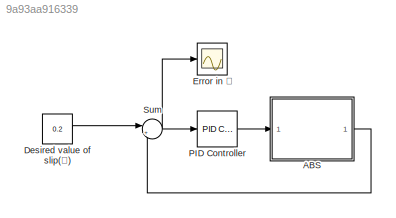
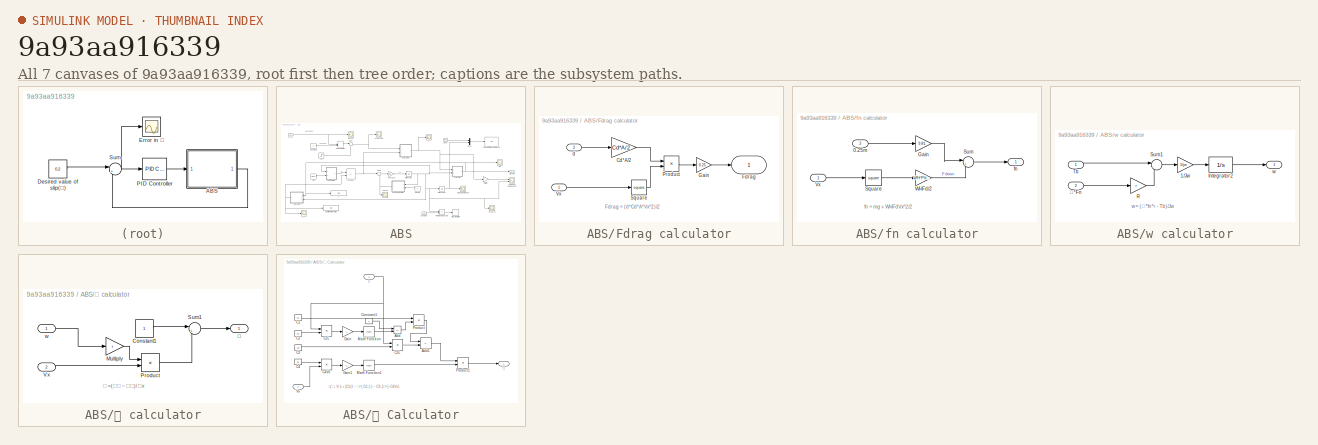
[diagram: thumbnail index - all 7 canvases of the model, root first then tree order]
MODEL slx_9a93aa916339
KIND model
CONFIG AbsTol = auto
CONFIG EnableMultiTasking = off
CONFIG FixedStep = auto
CONFIG MaxStep = auto
CONFIG MinStep = auto
CONFIG RelTol = 1e-3
CONFIG SampleTimeConstraint = Unconstrained
CONFIG SolverName = VariableStepAuto
CONFIG StartTime = 0.0
CONFIG StopTime = 50
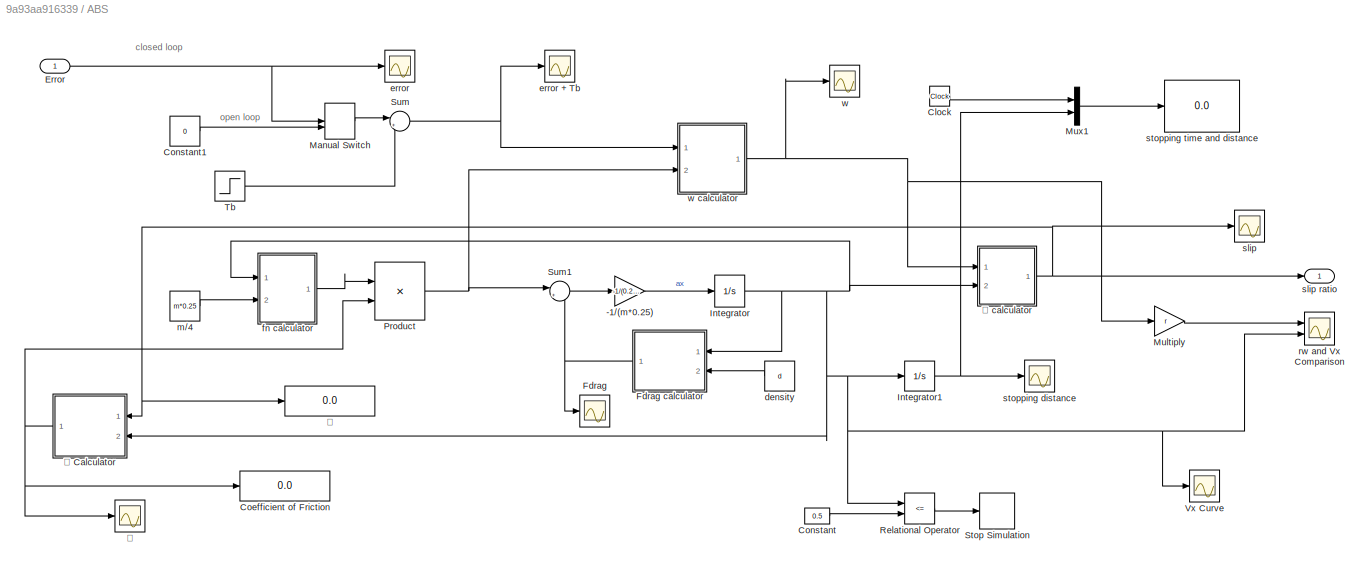
BLOCK [SubSystem] ABS
  Ports = [1, 1]
  RequestExecContextInheritance = off
BLOCK [Gain] ABS/-1//(m*0.25)
  Gain = -1/(0.25*m)
BLOCK [Clock] ABS/Clock
BLOCK [Display] ABS/Coefficient of Friction
  Decimation = 1
  Ports = [1]
BLOCK [Constant] ABS/Constant
  Value = 0.5
BLOCK [Constant] ABS/Constant1
  Value = 0
BLOCK [Inport] ABS/Error
BLOCK [Scope] ABS/Fdrag
  Floating = off
  NumInputPorts = 1
  Ports = [1]
  ScopeSpecificationString = Simulink.scopes.TimeScopeBlockCfg('CurrentConfiguration', extmgr.ConfigurationSet(extmgr.Configuration('Core','General UI',true),extmgr.Configuration('Core','Source UI',true),extmgr.Configuration('Sources','WiredSimulink',true,'DataLoggingVariableName','ScopeData1'),extmgr.Configuration('Visuals','Time Domain',true,'SerializedDisplays',{struct('MinYLimReal','-89.72298','MaxYLimReal','809.83886','Y...<+1414ch>
BLOCK [SubSystem] ABS/Fdrag calculator
  Ports = [2, 1]
  RequestExecContextInheritance = off
BLOCK [Gain] ABS/Fdrag calculator/Cd*A//2
  Gain = Cd*A/2
BLOCK [Outport] ABS/Fdrag calculator/Fdrag
BLOCK [Gain] ABS/Fdrag calculator/Gain
  Gain = 0.25
BLOCK [Product] ABS/Fdrag calculator/Product
  Ports = [2, 1]
BLOCK [Math] ABS/Fdrag calculator/Square
  Operator = square
  Ports = [1, 1]
BLOCK [Inport] ABS/Fdrag calculator/Vx
BLOCK [Inport] ABS/Fdrag calculator/d
  Port = 2
BLOCK [Integrator] ABS/Integrator
  InitialCondition = 27.78
  LimitOutput = on
  LowerSaturationLimit = 0
  Ports = [1, 1]
BLOCK [Integrator] ABS/Integrator1
  Ports = [1, 1]
BLOCK [ManualSwitch] ABS/Manual Switch
BLOCK [Gain] ABS/Multiply
  Gain = r
BLOCK [Mux] ABS/Mux1
  DisplayOption = bar
  Inputs = 2
  Ports = [2, 1]
BLOCK [Product] ABS/Product
  Ports = [2, 1]
BLOCK [RelationalOperator] ABS/Relational Operator
  InputSameDT = off
  Operator = <=
  OutDataTypeStr = boolean
  Ports = [2, 1]
  RndMeth = Simplest
BLOCK [Stop] ABS/Stop Simulation
BLOCK [Sum] ABS/Sum
  Inputs = |++
  Ports = [2, 1]
BLOCK [Sum] ABS/Sum1
  Inputs = |++
  Ports = [2, 1]
BLOCK [Step] ABS/Tb
  After = 1200
  SampleTime = 0
  Time = 0
BLOCK [Scope] ABS/Vx Curve
  Floating = off
  NumInputPorts = 1
  Ports = [1]
  ScopeSpecificationString = Simulink.scopes.TimeScopeBlockCfg('CurrentConfiguration', extmgr.ConfigurationSet(extmgr.Configuration('Core','General UI',true),extmgr.Configuration('Core','Source UI',true),extmgr.Configuration('Sources','WiredSimulink',true,'DataLoggingVariableName','ScopeData1'),extmgr.Configuration('Visuals','Time Domain',true,'SerializedDisplays',{struct('MinYLimReal','-2.39096','MaxYLimReal','31.13233','YLa...<+1496ch>
BLOCK [Constant] ABS/density
  Value = d
BLOCK [Scope] ABS/error
  Floating = off
  NumInputPorts = 1
  Ports = [1]
  ScopeSpecificationString = Simulink.scopes.TimeScopeBlockCfg('CurrentConfiguration', extmgr.ConfigurationSet(extmgr.Configuration('Core','General UI',true),extmgr.Configuration('Core','Source UI',true),extmgr.Configuration('Sources','WiredSimulink',true,'DataLoggingVariableName','ScopeData2'),extmgr.Configuration('Visuals','Time Domain',true,'SerializedDisplays',{struct('MinYLimReal','-7918.34705','MaxYLimReal','58651.35462...<+1551ch>
BLOCK [Scope] ABS/error + Tb
  Floating = off
  NumInputPorts = 1
  Ports = [1]
  ScopeSpecificationString = Simulink.scopes.TimeScopeBlockCfg('CurrentConfiguration', extmgr.ConfigurationSet(extmgr.Configuration('Core','General UI',true),extmgr.Configuration('Core','Source UI',true),extmgr.Configuration('Sources','WiredSimulink',true,'DataLoggingVariableName','ScopeData1'),extmgr.Configuration('Visuals','Time Domain',true,'SerializedDisplays',{struct('MinYLimReal','-894.49489','MaxYLimReal','9209.6595','...<+1600ch>
BLOCK [SubSystem] ABS/fn calculator
  Ports = [2, 1]
  RequestExecContextInheritance = off
BLOCK [Inport] ABS/fn calculator/0.25m
  Port = 2
BLOCK [Gain] ABS/fn calculator/Gain
  Gain = 9.81
BLOCK [Math] ABS/fn calculator/Square
  Operator = square
  Ports = [1, 1]
BLOCK [Sum] ABS/fn calculator/Sum
  Inputs = |++
  Ports = [2, 1]
BLOCK [Inport] ABS/fn calculator/Vx
BLOCK [Gain] ABS/fn calculator/WHFd//2
  Gain = W*H*F*d/2
BLOCK [Outport] ABS/fn calculator/fn
BLOCK [Constant] ABS/m//4
  Value = m*0.25
BLOCK [Scope] ABS/rw and Vx Comparison 
  Floating = off
  NumInputPorts = 2
  Ports = [2]
  ScopeSpecificationString = Simulink.scopes.TimeScopeBlockCfg('CurrentConfiguration', extmgr.ConfigurationSet(extmgr.Configuration('Core','General UI',true),extmgr.Configuration('Core','Source UI',true),extmgr.Configuration('Sources','WiredSimulink',true,'DataLoggingVariableName','ScopeData1'),extmgr.Configuration('Visuals','Time Domain',true,'SerializedDisplays',{struct('MinYLimReal','-3.02288','MaxYLimReal','31.20254','YLa...<+1597ch>
BLOCK [Scope] ABS/slip
  Floating = off
  NumInputPorts = 1
  Ports = [1]
  ScopeSpecificationString = Simulink.scopes.TimeScopeBlockCfg('CurrentConfiguration', extmgr.ConfigurationSet(extmgr.Configuration('Core','General UI',true),extmgr.Configuration('Core','Source UI',true),extmgr.Configuration('Sources','WiredSimulink',true,'DataLoggingVariableName','ScopeData3'),extmgr.Configuration('Visuals','Time Domain',true,'SerializedDisplays',{struct('MinYLimReal','-0.02576','MaxYLimReal','0.23204','YLab...<+1511ch>
BLOCK [Outport] ABS/slip ratio
BLOCK [Scope] ABS/stopping distance
  Floating = off
  NumInputPorts = 1
  Ports = [1]
  ScopeSpecificationString = Simulink.scopes.TimeScopeBlockCfg('CurrentConfiguration', extmgr.ConfigurationSet(extmgr.Configuration('Core','General UI',true),extmgr.Configuration('Core','Source UI',true),extmgr.Configuration('Sources','WiredSimulink',true),extmgr.Configuration('Visuals','Time Domain',true,'SerializedDisplays',{struct('MinYLimReal','-4.39922','MaxYLimReal','39.59299','YLabelReal','Stopping Distance','MinYLimMa...<+1616ch>
BLOCK [Display] ABS/stopping time and distance
  Decimation = 1
  Ports = [1]
BLOCK [Scope] ABS/w
  Floating = off
  NumInputPorts = 1
  Ports = [1]
  ScopeSpecificationString = Simulink.scopes.TimeScopeBlockCfg('CurrentConfiguration', extmgr.ConfigurationSet(extmgr.Configuration('Core','General UI',true),extmgr.Configuration('Core','Source UI',true),extmgr.Configuration('Sources','WiredSimulink',true,'DataLoggingVariableName','ScopeData2'),extmgr.Configuration('Visuals','Time Domain',true,'SerializedDisplays',{struct('MinYLimReal','-10.5225','MaxYLimReal','94.7025','YLab...<+1473ch>
BLOCK [SubSystem] ABS/w calculator
  Ports = [2, 1]
  RequestExecContextInheritance = off
BLOCK [Gain] ABS/w calculator/1//Jw
  Gain = 1/jw
BLOCK [Integrator] ABS/w calculator/Integrator2
  InitialCondition = 84.18
  LimitOutput = on
  LowerSaturationLimit = 0
  Ports = [1, 1]
BLOCK [Gain] ABS/w calculator/R
  Gain = r
BLOCK [Sum] ABS/w calculator/Sum1
  Inputs = |-+
  Ports = [2, 1]
BLOCK [Inport] ABS/w calculator/Tb
BLOCK [Outport] ABS/w calculator/w
BLOCK [Inport] ABS/w calculator/𝜇*Fn
  Port = 2
BLOCK [Display] ABS/𝜆
  Decimation = 1
  Ports = [1]
BLOCK [SubSystem] ABS/𝜆 calculator
  Ports = [2, 1]
  RequestExecContextInheritance = off
BLOCK [Constant] ABS/𝜆 calculator/Constant1
BLOCK [Gain] ABS/𝜆 calculator/Multiply
  Gain = r
BLOCK [Product] ABS/𝜆 calculator/Product
  Inputs = */
  Ports = [2, 1]
BLOCK [Sum] ABS/𝜆 calculator/Sum1
  Inputs = |+-
  Ports = [2, 1]
BLOCK [Inport] ABS/𝜆 calculator/Vx
  Port = 2
BLOCK [Inport] ABS/𝜆 calculator/w
BLOCK [Outport] ABS/𝜆 calculator/𝜆
BLOCK [Scope] ABS/𝜇
  Floating = off
  NumInputPorts = 1
  Ports = [1]
  ScopeSpecificationString = Simulink.scopes.TimeScopeBlockCfg('CurrentConfiguration', extmgr.ConfigurationSet(extmgr.Configuration('Core','General UI',true),extmgr.Configuration('Core','Source UI',true),extmgr.Configuration('Sources','WiredSimulink',true,'DataLoggingVariableName','ScopeData1'),extmgr.Configuration('Visuals','Time Domain',true,'SerializedDisplays',{struct('MinYLimReal','-0.14318','MaxYLimReal','1.29148','YLab...<+1615ch>
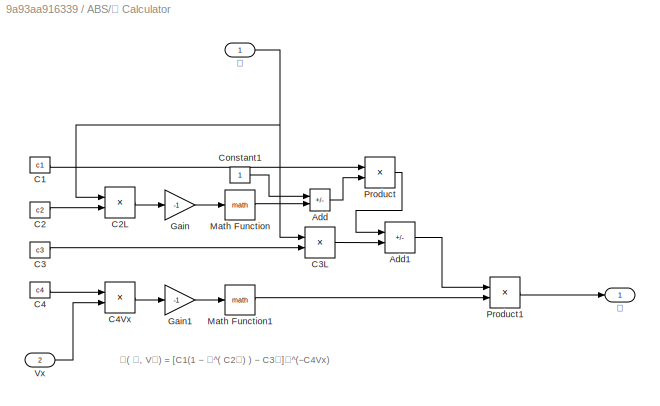
BLOCK [SubSystem] ABS/𝜇 Calculator
  Ports = [2, 1]
  RequestExecContextInheritance = off
BLOCK [Sum] ABS/𝜇 Calculator/Add
  IconShape = rectangular
  Inputs = +-
  Ports = [2, 1]
BLOCK [Sum] ABS/𝜇 Calculator/Add1
  IconShape = rectangular
  Inputs = +-
  Ports = [2, 1]
BLOCK [Constant] ABS/𝜇 Calculator/C1
  Value = c1
BLOCK [Constant] ABS/𝜇 Calculator/C2
  Value = c2
BLOCK [Product] ABS/𝜇 Calculator/C2L
  Ports = [2, 1]
BLOCK [Constant] ABS/𝜇 Calculator/C3
  Value = c3
BLOCK [Product] ABS/𝜇 Calculator/C3L
  Ports = [2, 1]
BLOCK [Constant] ABS/𝜇 Calculator/C4
  Value = c4
BLOCK [Product] ABS/𝜇 Calculator/C4Vx
  Ports = [2, 1]
BLOCK [Constant] ABS/𝜇 Calculator/Constant1
BLOCK [Gain] ABS/𝜇 Calculator/Gain
  Gain = -1
BLOCK [Gain] ABS/𝜇 Calculator/Gain1
  Gain = -1
BLOCK [Math] ABS/𝜇 Calculator/Math Function
  Ports = [1, 1]
BLOCK [Math] ABS/𝜇 Calculator/Math Function1
  Ports = [1, 1]
BLOCK [Product] ABS/𝜇 Calculator/Product
  Ports = [2, 1]
BLOCK [Product] ABS/𝜇 Calculator/Product1
  Ports = [2, 1]
BLOCK [Inport] ABS/𝜇 Calculator/Vx
  Port = 2
BLOCK [Inport] ABS/𝜇 Calculator/𝜆
BLOCK [Outport] ABS/𝜇 Calculator/𝜇
BLOCK [Constant] Desired value of slip(𝜆)
  Value = 0.2
BLOCK [Scope] Error in 𝜆
  Floating = off
  NumInputPorts = 1
  Ports = [1]
  ScopeSpecificationString = Simulink.scopes.TimeScopeBlockCfg('CurrentConfiguration', extmgr.ConfigurationSet(extmgr.Configuration('Core','General UI',true),extmgr.Configuration('Core','Source UI',true),extmgr.Configuration('Sources','WiredSimulink',true,'DataLoggingVariableName','ScopeData1'),extmgr.Configuration('Visuals','Time Domain',true,'SerializedDisplays',{struct('MinYLimReal','-0.06357','MaxYLimReal','0.22926','YLab...<+1435ch>
BLOCK [Reference] PID Controller  REF=pid_lib/PID Controller
  Ports = [1, 1]
  SourceBlock = pid_lib/PID Controller
  SourceProductBaseCode = SL
  SourceType = PID 1dof
BLOCK [Sum] Sum
  Inputs = |+-
  Ports = [2, 1]
ANNOTATION ABS: closed loop
ANNOTATION ABS: open loop
ANNOTATION ABS/Fdrag calculator: Fdrag = (d*Cd*A*Vx^2)/2
ANNOTATION ABS/fn calculator: fn = mg + WHFdVx^2/2
ANNOTATION ABS/w calculator: w = (𝜇*fn*r - Tb)/Jw
ANNOTATION ABS/𝜆 calculator: 𝜆 =(𝑉𝑥 − 𝜔𝑅)/ 𝑉x
ANNOTATION ABS/𝜇 Calculator: 𝜇( 𝜆, V𝑥) = [C1(1 − 𝑒^( C2𝜆) ) − C3𝜆]𝑒^(−C4Vx)
LINE ABS/-1//(m*0.25):1 -> ABS/Integrator:1
LINE ABS/Clock:1 -> ABS/Mux1:1
LINE ABS/Constant1:1 -> ABS/Manual Switch:2
LINE ABS/Constant:1 -> ABS/Relational Operator:2
NET ABS/Error:1 -> ABS/Manual Switch:1, ABS/error:1
LINE ABS/Fdrag calculator/Cd*A//2:1 -> ABS/Fdrag calculator/Product:1
LINE ABS/Fdrag calculator/Gain:1 -> ABS/Fdrag calculator/Fdrag:1
LINE ABS/Fdrag calculator/Product:1 -> ABS/Fdrag calculator/Gain:1
LINE ABS/Fdrag calculator/Square:1 -> ABS/Fdrag calculator/Product:2
LINE ABS/Fdrag calculator/Vx:1 -> ABS/Fdrag calculator/Square:1
LINE ABS/Fdrag calculator/d:1 -> ABS/Fdrag calculator/Cd*A//2:1
NET ABS/Fdrag calculator:1 -> ABS/Fdrag:1, ABS/Sum1:2
NET ABS/Integrator1:1 -> ABS/Mux1:2, ABS/stopping distance:1
NET ABS/Integrator:1 -> ABS/Fdrag calculator:1, ABS/Integrator1:1, ABS/Relational Operator:1, ABS/Vx Curve:1, ABS/fn calculator:1, ABS/rw and Vx Comparison :2, ABS/𝜆 calculator:2, ABS/𝜇 Calculator:2
LINE ABS/Manual Switch:1 -> ABS/Sum:1
LINE ABS/Multiply:1 -> ABS/rw and Vx Comparison :1
LINE ABS/Mux1:1 -> ABS/stopping time and distance:1
NET ABS/Product:1 -> ABS/Sum1:1, ABS/w calculator:2
LINE ABS/Relational Operator:1 -> ABS/Stop Simulation:1
LINE ABS/Sum1:1 -> ABS/-1//(m*0.25):1
NET ABS/Sum:1 -> ABS/error + Tb:1, ABS/w calculator:1
LINE ABS/Tb:1 -> ABS/Sum:2
LINE ABS/density:1 -> ABS/Fdrag calculator:2
LINE ABS/fn calculator/0.25m:1 -> ABS/fn calculator/Gain:1
LINE ABS/fn calculator/Gain:1 -> ABS/fn calculator/Sum:1
LINE ABS/fn calculator/Square:1 -> ABS/fn calculator/WHFd//2:1
LINE ABS/fn calculator/Sum:1 -> ABS/fn calculator/fn:1
LINE ABS/fn calculator/Vx:1 -> ABS/fn calculator/Square:1
LINE ABS/fn calculator/WHFd//2:1 -> ABS/fn calculator/Sum:2
LINE ABS/fn calculator:1 -> ABS/Product:1
LINE ABS/m//4:1 -> ABS/fn calculator:2
LINE ABS/w calculator/1//Jw:1 -> ABS/w calculator/Integrator2:1
LINE ABS/w calculator/Integrator2:1 -> ABS/w calculator/w:1
LINE ABS/w calculator/R:1 -> ABS/w calculator/Sum1:2
LINE ABS/w calculator/Sum1:1 -> ABS/w calculator/1//Jw:1
LINE ABS/w calculator/Tb:1 -> ABS/w calculator/Sum1:1
LINE ABS/w calculator/𝜇*Fn:1 -> ABS/w calculator/R:1
NET ABS/w calculator:1 -> ABS/Multiply:1, ABS/w:1, ABS/𝜆 calculator:1
LINE ABS/𝜆 calculator/Constant1:1 -> ABS/𝜆 calculator/Sum1:1
LINE ABS/𝜆 calculator/Multiply:1 -> ABS/𝜆 calculator/Product:1
LINE ABS/𝜆 calculator/Product:1 -> ABS/𝜆 calculator/Sum1:2
LINE ABS/𝜆 calculator/Sum1:1 -> ABS/𝜆 calculator/𝜆:1
LINE ABS/𝜆 calculator/Vx:1 -> ABS/𝜆 calculator/Product:2
LINE ABS/𝜆 calculator/w:1 -> ABS/𝜆 calculator/Multiply:1
NET ABS/𝜆 calculator:1 -> ABS/slip ratio:1, ABS/slip:1, ABS/𝜆:1, ABS/𝜇 Calculator:1
LINE ABS/𝜇 Calculator/Add1:1 -> ABS/𝜇 Calculator/Product1:1
LINE ABS/𝜇 Calculator/Add:1 -> ABS/𝜇 Calculator/Product:2
LINE ABS/𝜇 Calculator/C1:1 -> ABS/𝜇 Calculator/Product:1
LINE ABS/𝜇 Calculator/C2:1 -> ABS/𝜇 Calculator/C2L:2
LINE ABS/𝜇 Calculator/C2L:1 -> ABS/𝜇 Calculator/Gain:1
LINE ABS/𝜇 Calculator/C3:1 -> ABS/𝜇 Calculator/C3L:2
LINE ABS/𝜇 Calculator/C3L:1 -> ABS/𝜇 Calculator/Add1:2
LINE ABS/𝜇 Calculator/C4:1 -> ABS/𝜇 Calculator/C4Vx:1
LINE ABS/𝜇 Calculator/C4Vx:1 -> ABS/𝜇 Calculator/Gain1:1
LINE ABS/𝜇 Calculator/Constant1:1 -> ABS/𝜇 Calculator/Add:1
LINE ABS/𝜇 Calculator/Gain1:1 -> ABS/𝜇 Calculator/Math Function1:1
LINE ABS/𝜇 Calculator/Gain:1 -> ABS/𝜇 Calculator/Math Function:1
LINE ABS/𝜇 Calculator/Math Function1:1 -> ABS/𝜇 Calculator/Product1:2
LINE ABS/𝜇 Calculator/Math Function:1 -> ABS/𝜇 Calculator/Add:2
LINE ABS/𝜇 Calculator/Product1:1 -> ABS/𝜇 Calculator/𝜇:1
LINE ABS/𝜇 Calculator/Product:1 -> ABS/𝜇 Calculator/Add1:1
LINE ABS/𝜇 Calculator/Vx:1 -> ABS/𝜇 Calculator/C4Vx:2
NET ABS/𝜇 Calculator/𝜆:1 -> ABS/𝜇 Calculator/C2L:1, ABS/𝜇 Calculator/C3L:1
NET ABS/𝜇 Calculator:1 -> ABS/Coefficient of Friction:1, ABS/Product:2, ABS/𝜇:1
LINE ABS:1 -> Sum:2
LINE Desired value of slip(𝜆):1 -> Sum:1
LINE PID Controller:1 -> ABS:1
NET Sum:1 -> Error in 𝜆:1, PID Controller:1
note: NET lines group one-source signal fan-out (src -> all destinations, sorted); 1:1 wires keep LINE
